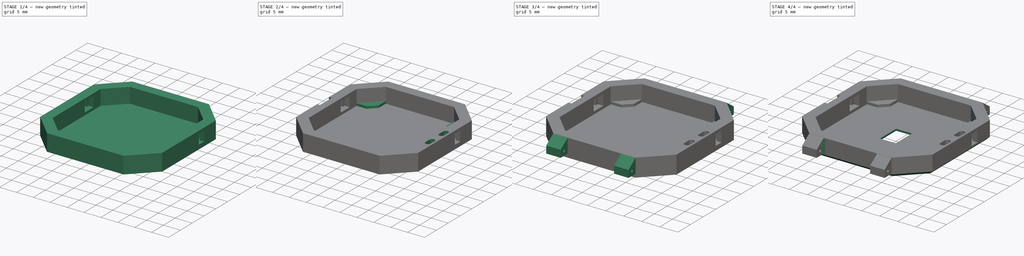
[diagram: build sequence overview — one tinted view per stage of 4, left to right]
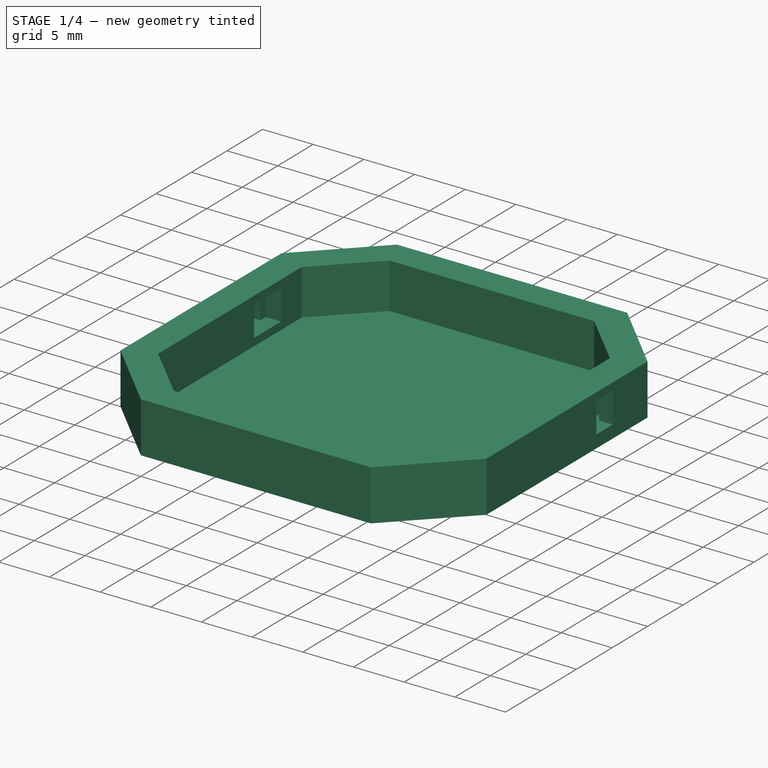
[diagram: stage 1 of 4 — iso view after this stage's code; geometry added in this stage tinted green]
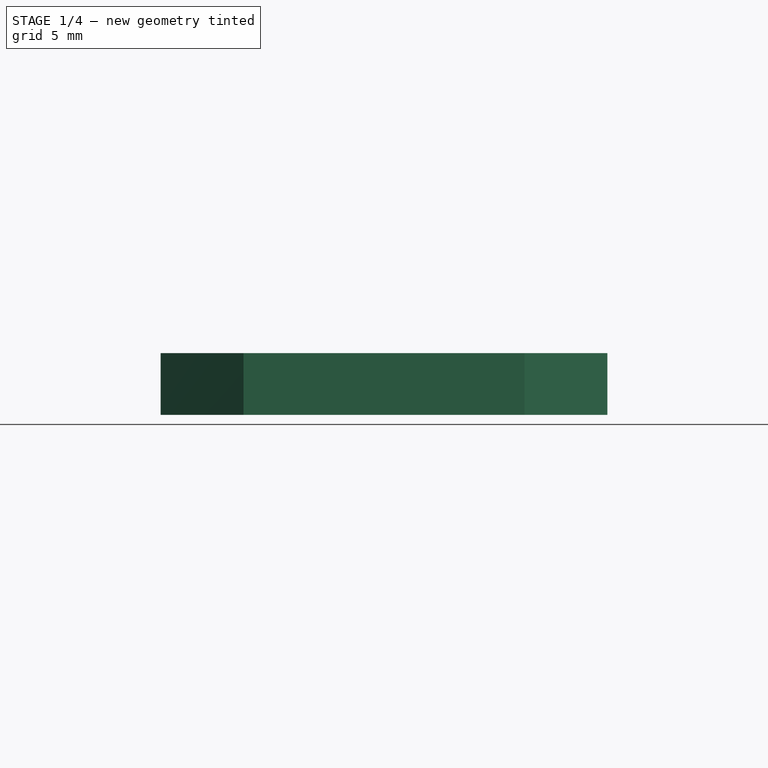
[diagram: stage 1 of 4 — front view after this stage's code; geometry added in this stage tinted green]
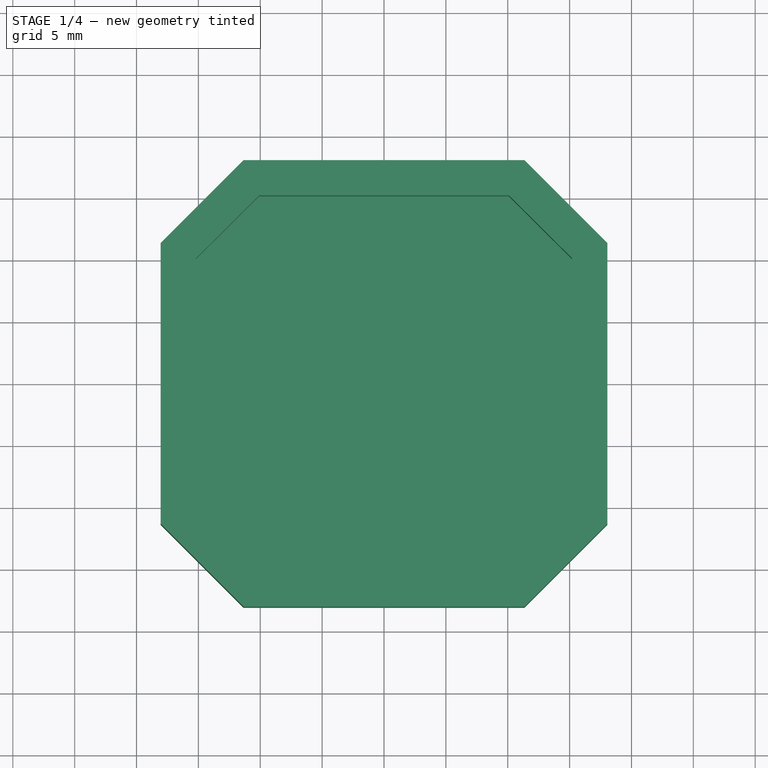
[diagram: stage 1 of 4 — top view after this stage's code; geometry added in this stage tinted green]
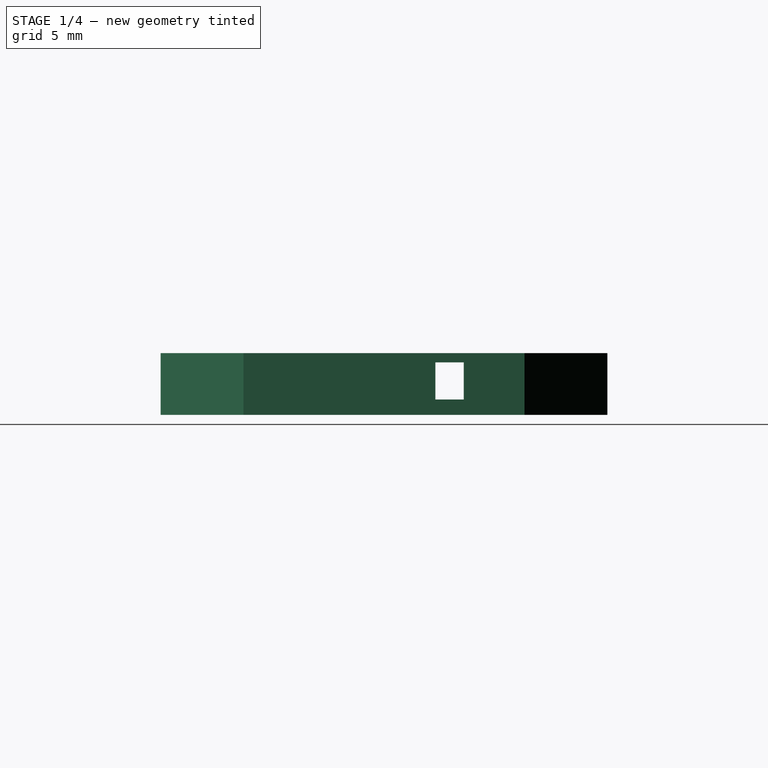
[diagram: stage 1 of 4 — right view after this stage's code; geometry added in this stage tinted green]
FCSTD DOCUMENT  (FreeCAD 0.19R)
Label: body-bottom_current
License: All rights reserved
LicenseURL: http://en.wikipedia.org/wiki/All_rights_reserved
objects: Sketcher::SketchObject×9, PartDesign::Pocket×6, PartDesign::Pad×3, PartDesign::Mirrored×3, PartDesign::Chamfer×2, PartDesign::MultiTransform×1, PartDesign::Body×1
note: 34 computed .brp shape members not serialized (recipe doc carries the construction recipe); baked Part::Feature solids carry a one-line shape summary decoded from their .brp

FEATURE [Sketcher::SketchObject] Sketch001  label="body-base"
  MapMode = 2
  sketch-geometry (16):
    g0: LineSegment StartX=18.05 StartY=11.35 StartZ=0 EndX=11.35 EndY=18.05 EndZ=0
    g1: LineSegment StartX=-11.35 StartY=18.05 StartZ=0 EndX=11.35 EndY=18.05 EndZ=0
    g2: LineSegment StartX=-18.05 StartY=11.35 StartZ=0 EndX=-11.35 EndY=18.05 EndZ=0
    g3: LineSegment StartX=-18.05 StartY=11.35 StartZ=0 EndX=-18.05 EndY=-11.35 EndZ=0
    g4: LineSegment StartX=-18.05 StartY=-11.35 StartZ=0 EndX=-11.35 EndY=-18.05 EndZ=0
    g5: LineSegment StartX=-11.35 StartY=-18.05 StartZ=0 EndX=11.35 EndY=-18.05 EndZ=0
    g6: LineSegment StartX=11.35 StartY=-18.05 StartZ=0 EndX=18.05 EndY=-11.35 EndZ=0
    g7: LineSegment StartX=18.05 StartY=-11.35 StartZ=0 EndX=18.05 EndY=11.35 EndZ=0
    g8: LineSegment [constr] StartX=-18.05 StartY=11.35 StartZ=0 EndX=-18.05 EndY=18.05 EndZ=0
    g9: LineSegment [constr] StartX=-18.05 StartY=18.05 StartZ=0 EndX=-11.35 EndY=18.05 EndZ=0
    g10: LineSegment [constr] StartX=11.35 StartY=18.05 StartZ=0 EndX=18.05 EndY=18.05 EndZ=0
    g11: LineSegment [constr] StartX=18.05 StartY=18.05 StartZ=0 EndX=18.05 EndY=11.35 EndZ=0
    g12: LineSegment [constr] StartX=-18.05 StartY=-11.35 StartZ=0 EndX=-18.05 EndY=-18.05 EndZ=0
    g13: LineSegment [constr] StartX=-18.05 StartY=-18.05 StartZ=0 EndX=-11.35 EndY=-18.05 EndZ=0
    g14: LineSegment [constr] StartX=11.35 StartY=-18.05 StartZ=0 EndX=18.05 EndY=-18.05 EndZ=0
    g15: LineSegment [constr] StartX=18.05 StartY=-18.05 StartZ=0 EndX=18.05 EndY=-11.35 EndZ=0
  constraints (43):
    c: Equal(g7,g5)
    c: Equal(g5,g3)
    c: Equal(g3,g1)
    c: Equal(g2,g0)
    c: Equal(g0,g6)
    c: Equal(g6,g4)
    c: DistanceY(g7,g7) = 22.7
    c: Symmetric(g0,g2,g-2)
    c: Symmetric(g4,g1,g-1)
    c: Coincident(g1,g2)
    c: Coincident(g2,g3)
    c: Coincident(g3,g4)
    c: Coincident(g4,g5)
    c: Coincident(g5,g6)
    c: Coincident(g6,g7)
    c: Coincident(g0,g7)
    c: Coincident(g0,g1)
    c: Equal(g7,g3)
    c: Coincident(g8,g2)
    c: Vertical(g8)
    c: Coincident(g9,g8)
    c: Coincident(g9,g1)
    c: Horizontal(g9)
    c: Equal(g9,g8)
    c: Coincident(g10,g0)
    c: Horizontal(g10)
    c: Coincident(g11,g0)
    c: Vertical(g11)
    c: Coincident(g10,g11)
    c: Equal(g11,g10)
    c: Coincident(g12,g3)
    c: Vertical(g12)
    c: Coincident(g13,g4)
    c: Horizontal(g13)
    c: Coincident(g12,g13)
    c: Equal(g13,g12)
    c: Coincident(g14,g5)
    c: Horizontal(g14)
    c: Coincident(g15,g14)
    c: Coincident(g15,g6)
    c: Vertical(g15)
    c: Equal(g14,g15)
    c: DistanceY(g15,g15) = 6.7
FEATURE [Sketcher::SketchObject] Sketch006  label="ganchinho-sketch"
  MapMode = 5
  Placement = pos=(0,0,0) rot=(1,0,0;1.5708rad)
  sketch-geometry (6):
    g0: LineSegment StartX=-18.2 StartY=5 StartZ=0 EndX=-18.2 EndY=2 EndZ=0
    g1: LineSegment StartX=-18.2 StartY=5 StartZ=0 EndX=-17.2 EndY=5 EndZ=0
    g2: LineSegment StartX=-17.2 StartY=5 StartZ=0 EndX=-17.2 EndY=3.5 EndZ=0
    g3: LineSegment StartX=-18.2 StartY=2 StartZ=0 EndX=-16.7 EndY=3 EndZ=0
    g4: LineSegment StartX=-16.7 StartY=3 StartZ=0 EndX=-17.2 EndY=3.5 EndZ=0
    g5: LineSegment [constr] StartX=-16.7 StartY=3 StartZ=0 EndX=-18.2 EndY=3 EndZ=0
  constraints (5):
    c: Coincident(g0,g3)
    c: Coincident(g0,g1)
    c: Coincident(g2,g4)
    c: Coincident(g1,g2)
    c: Coincident(g3,g4)
FEATURE [Sketcher::SketchObject] Sketch007  label="holes-holder-top"
  MapMode = 5
  Placement = pos=(0,0,5) rot=(0,0,1;0rad)
  sketch-geometry (8):
    g0: ArcOfCircle CenterX=16.7 CenterY=0.5 CenterZ=0 NormalX=0 NormalY=0 NormalZ=1 AngleXU=0 Radius=0.75 StartAngle=3.14159 EndAngle=6.28319
    g1: ArcOfCircle CenterX=16.7 CenterY=2.25001 CenterZ=0 NormalX=0 NormalY=0 NormalZ=1 AngleXU=0 Radius=0.75 StartAngle=6.28317 EndAngle=9.42478
    g2: LineSegment StartX=17.45 StartY=0.5 StartZ=0 EndX=17.45 EndY=2.25 EndZ=0
    g3: LineSegment StartX=15.95 StartY=0.5 StartZ=0 EndX=15.95 EndY=2.25001 EndZ=0
    g4: ArcOfCircle CenterX=16.7043 CenterY=-5.25 CenterZ=0 NormalX=0 NormalY=0 NormalZ=1 AngleXU=0 Radius=0.75 StartAngle=3.14159 EndAngle=6.28319
    g5: ArcOfCircle CenterX=16.7043 CenterY=-3.5 CenterZ=0 NormalX=0 NormalY=0 NormalZ=1 AngleXU=0 Radius=0.75 StartAngle=1.23631e-06 EndAngle=3.14159
    g6: LineSegment StartX=17.4543 StartY=-5.25 StartZ=0 EndX=17.4543 EndY=-3.5 EndZ=0
    g7: LineSegment StartX=15.9543 StartY=-5.25 StartZ=0 EndX=15.9543 EndY=-3.5 EndZ=0
  constraints (22):
    c: Coincident(g5,g6)
    c: Coincident(g1,g2)
    c: DistanceY(g5,g0) = 4
    c: Equal(g2,g6)
    c: Equal(g1,g5)
    c: Radius(g1) = 0.75
    c: DistanceY(g2,g2) = 1.75
    c: DistanceX(g-1,g0) = 16.7
    c: Vertical(g3)
    c: Vertical(g2)
    c: Vertical(g6)
    c: Vertical(g7)
    c: Equal(g4,g5)
    c: Equal(g0,g1)
    c: Equal(g6,g2)
    c: Tangent(g4,g6) = -1.5708
    c: Tangent(g4,g7) = 1.5708
    c: Tangent(g0,g3) = 1.5708
    c: Tangent(g0,g2) = -1.5708
    c: Tangent(g1,g3) = 1.5708
    c: Tangent(g5,g7) = 1.5708
    c: DistanceY(g5,g-1) = 3.5
FEATURE [Sketcher::SketchObject] Sketch008  label="support-band"
  AttachmentOffset = pos=(0,0,7.2) rot=(0,0,1;0rad)
  MapMode = 4
  Placement = pos=(7.4,0,2e-15) rot=(0.57735,0.57735,0.57735;2.0944rad)
  sketch-geometry (4):
    g0: LineSegment StartX=-18 StartY=1 StartZ=0 EndX=-18 EndY=5 EndZ=0
    g1: LineSegment StartX=-20.8 StartY=3 StartZ=0 EndX=-20.8 EndY=1 EndZ=0
    g2: LineSegment StartX=-20.8 StartY=1 StartZ=0 EndX=-18 EndY=1 EndZ=0
    g3: LineSegment StartX=-20.8 StartY=3 StartZ=0 EndX=-18 EndY=5 EndZ=0
  constraints (12):
    c: Coincident(g1,g2)
    c: Coincident(g0,g2)
    c: DistanceX(g0,g-1) = 18
    c: Vertical(g0)
    c: DistanceX(g2,g2) = 2.8
    c: DistanceY(g1,g1) = 2
    c: DistanceY(g0,g0) = 4
    c: Vertical(g1)
    c: Horizontal(g2)
    c: Coincident(g3,g1)
    c: Coincident(g3,g0)
    c: DistanceY(g-1,g0) = 1
FEATURE [PartDesign::Pad] Pad  label="base"
  Length = 5
  Length2 = 100
  Profile = -> Sketch001
  Type = 0
FEATURE [Sketcher::SketchObject] Sketch  label="board-pocket"
  MapMode = 5
  Placement = pos=(0,0,5) rot=(0,0,1;0rad)
  Support = -> [Pad]
  sketch-geometry (8):
    g0: LineSegment StartX=-15.2 StartY=10.1177 StartZ=0 EndX=-15.2 EndY=-10.1177 EndZ=0
    g1: LineSegment StartX=-10.1 StartY=-15.2 StartZ=0 EndX=-15.2 EndY=-10.1177 EndZ=0
    g2: LineSegment StartX=-10.1 StartY=-15.2 StartZ=0 EndX=10.1 EndY=-15.2 EndZ=0
    g3: LineSegment StartX=10.1 StartY=-15.2 StartZ=0 EndX=15.2 EndY=-10.1177 EndZ=0
    g4: LineSegment StartX=15.2 StartY=-10.1177 StartZ=0 EndX=15.2 EndY=10.1177 EndZ=0
    g5: LineSegment StartX=15.2 StartY=10.1177 StartZ=0 EndX=10.1 EndY=15.2 EndZ=0
    g6: LineSegment StartX=-10.1 StartY=15.2 StartZ=0 EndX=-15.2 EndY=10.1177 EndZ=0
    g7: LineSegment StartX=-10.1 StartY=15.2 StartZ=0 EndX=10.1 EndY=15.2 EndZ=0
  constraints (21):
    c: Coincident(g6,g7)
    c: Coincident(g7,g5)
    c: Coincident(g5,g4)
    c: Coincident(g4,g3)
    c: Coincident(g3,g2)
    c: Coincident(g2,g1)
    c: Coincident(g1,g0)
    c: Coincident(g0,g6)
    c: Symmetric(g0,g0,g-1)
    c: Symmetric(g0,g3,g-2)
    c: Symmetric(g0,g4,g-2)
    c: Symmetric(g6,g1,g-1)
    c: Symmetric(g2,g5,g-1)
    c: Symmetric(g5,g6,g-2)
    c: DistanceX(g7,g7) = 20.2
    c: DistanceX(g0,g4) = 30.4
    c: Distance(g2,g5) = 30.4
    c: Equal(g6,g1)
    c: Equal(g1,g3)
    c: Equal(g3,g5)
    c: Distance(g3) = 7.2
FEATURE [PartDesign::Pocket] Pocket  label="pcb"
  BaseFeature = -> Pad
  Length = 4.5
  Length2 = 100
  Profile = -> Sketch
  Type = 0
FEATURE [Sketcher::SketchObject] Sketch004  label="buttom-space"
  AttachmentOffset = pos=(0,0,0.75) rot=(0,0,1;0rad)
  MapMode = 5
  Placement = pos=(0,0,1.25) rot=(0,0,1;0rad)
  Support = -> [Pocket]
  sketch-geometry (18):
    g0: LineSegment [constr] StartX=15.2 StartY=-10.1 StartZ=0 EndX=15.2 EndY=3.4 EndZ=0
    g1: LineSegment [constr] StartX=-15.2 StartY=-10.1 StartZ=0 EndX=-15.2 EndY=3.4 EndZ=0
    g2: LineSegment StartX=15.2 StartY=3.4 StartZ=0 EndX=15.2 EndY=7.2 EndZ=0
    g3: LineSegment StartX=-15.2 StartY=3.4 StartZ=0 EndX=-15.2 EndY=7.2 EndZ=0
    g4: LineSegment StartX=15.2 StartY=7.2 StartZ=0 EndX=16.7 EndY=7.2 EndZ=0
    g5: LineSegment StartX=15.2 StartY=3.4 StartZ=0 EndX=16.7 EndY=3.4 EndZ=0
    g6: LineSegment StartX=16.7 StartY=4.15 StartZ=0 EndX=16.7 EndY=3.4 EndZ=0
    g7: LineSegment StartX=16.7 StartY=6.45 StartZ=0 EndX=16.7 EndY=7.2 EndZ=0
    g8: LineSegment StartX=16.7 StartY=6.45 StartZ=0 EndX=18.2 EndY=6.45 EndZ=0
    g9: LineSegment StartX=18.2 StartY=6.45 StartZ=0 EndX=18.2 EndY=4.15 EndZ=0
    g10: LineSegment StartX=16.7 StartY=4.15 StartZ=0 EndX=18.2 EndY=4.15 EndZ=0
    g11: LineSegment StartX=-18.2 StartY=6.45 StartZ=0 EndX=-16.7 EndY=6.45 EndZ=0
    g12: LineSegment StartX=-16.7 StartY=3.4 StartZ=0 EndX=-15.2 EndY=3.4 EndZ=0
    g13: LineSegment StartX=-18.2 StartY=4.15 StartZ=0 EndX=-16.7 EndY=4.15 EndZ=0
    g14: LineSegment StartX=-16.7 StartY=4.15 StartZ=0 EndX=-16.7 EndY=3.4 EndZ=0
    g15: LineSegment StartX=-16.7 StartY=7.2 StartZ=0 EndX=-16.7 EndY=6.45 EndZ=0
    g16: LineSegment StartX=-18.2 StartY=6.45 StartZ=0 EndX=-18.2 EndY=4.15 EndZ=0
    g17: LineSegment StartX=-16.7 StartY=7.2 StartZ=0 EndX=-15.2 EndY=7.2 EndZ=0
  constraints (16):
    c: Coincident(g13,g16)
    c: Coincident(g11,g16)
    c: Coincident(g12,g14)
    c: Coincident(g13,g14)
    c: Coincident(g15,g11)
    c: Coincident(g15,g17)
    c: Coincident(g12,g3)
    c: Coincident(g17,g3)
    c: Coincident(g5,g2)
    c: Coincident(g2,g4)
    c: Coincident(g6,g5)
    c: Coincident(g10,g6)
    c: Coincident(g8,g7)
    c: Coincident(g7,g4)
    c: Coincident(g10,g9)
    c: Coincident(g9,g8)
FEATURE [PartDesign::Pocket] Pocket001  label="buttons"
  BaseFeature = -> Pocket
  Length = 3
  Length2 = 100
  Profile = -> Sketch004
  Reversed = true
  Type = 0
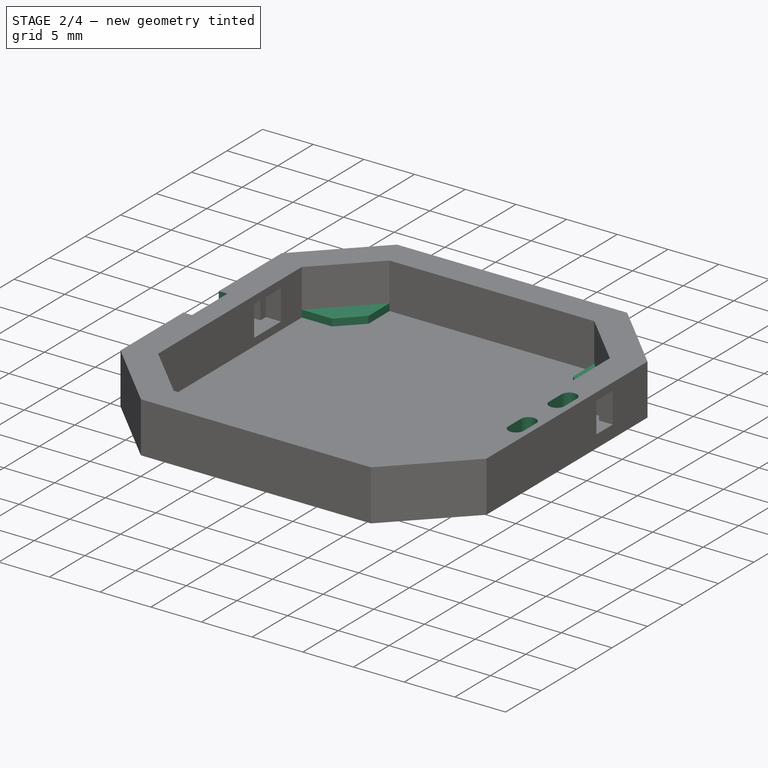
[diagram: stage 2 of 4 — iso view after this stage's code; geometry added in this stage tinted green]
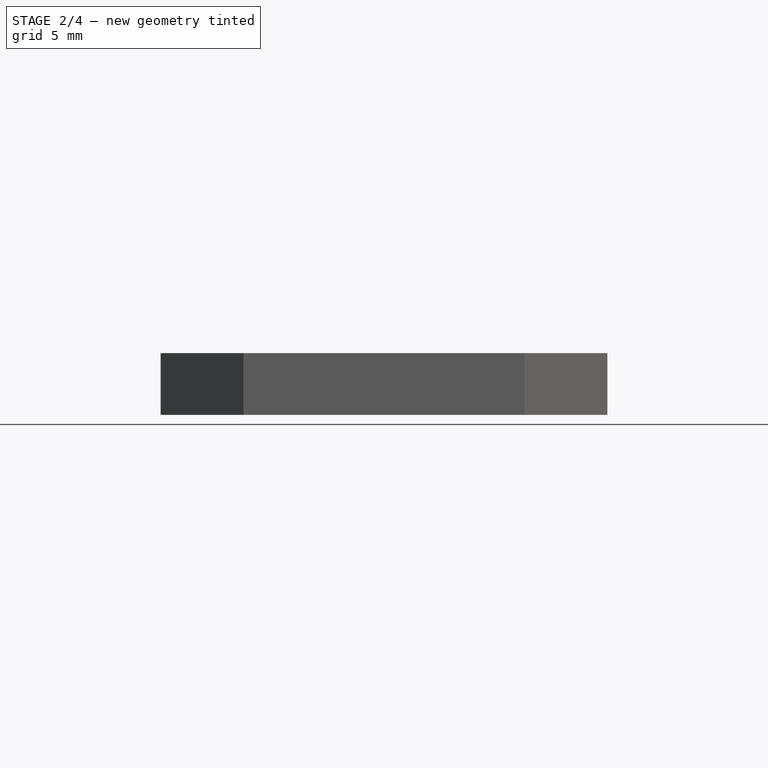
[diagram: stage 2 of 4 — front view after this stage's code; geometry added in this stage tinted green]
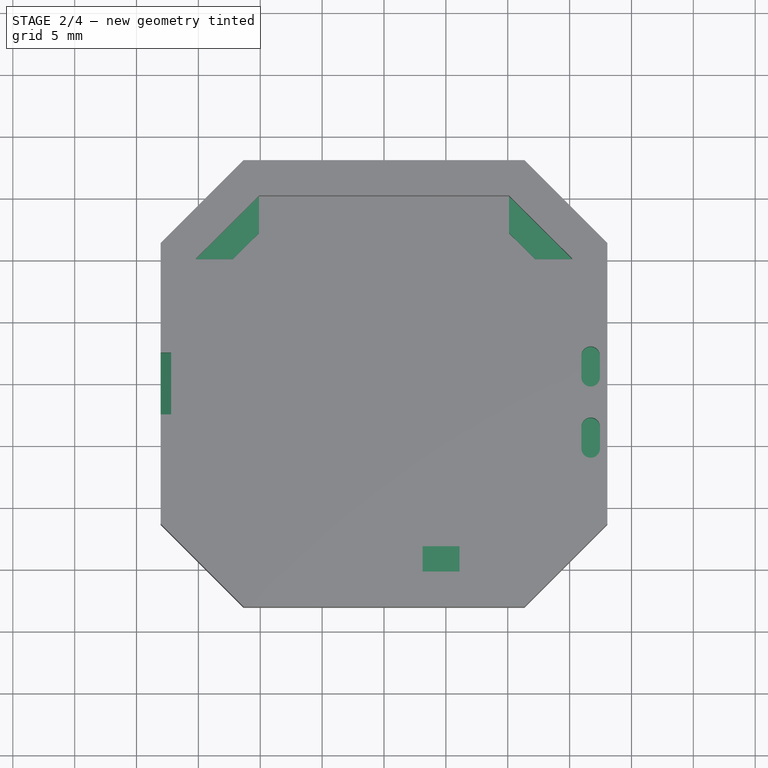
[diagram: stage 2 of 4 — top view after this stage's code; geometry added in this stage tinted green]
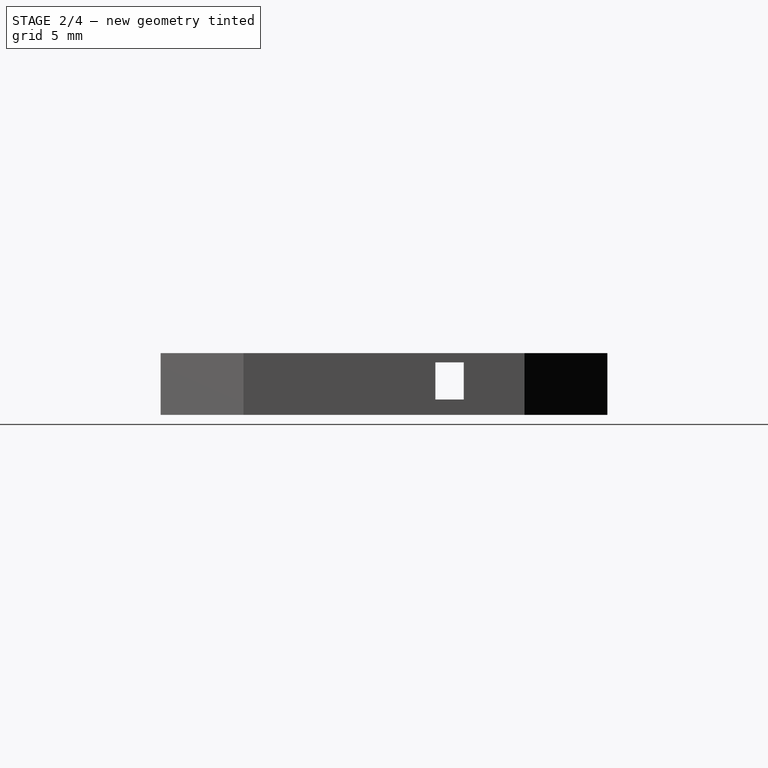
[diagram: stage 2 of 4 — right view after this stage's code; geometry added in this stage tinted green]
FEATURE [Sketcher::SketchObject] Sketch005  label="board-foot"
  ExternalGeometry = -> [Sketch]
  MapMode = 5
  Placement = pos=(0,0,0.5) rot=(0,0,1;0rad)
  Support = -> [Pocket001]
  sketch-geometry (13):
    g0: LineSegment StartX=-10.1 StartY=15.2 StartZ=0 EndX=-10.1 EndY=12.2207 EndZ=0
    g1: LineSegment StartX=-15.2 StartY=10.1177 StartZ=0 EndX=-12.2103 EndY=10.1177 EndZ=0
    g2: LineSegment StartX=12.2103 StartY=10.1177 StartZ=0 EndX=15.2 EndY=10.1177 EndZ=0
    g3: LineSegment StartX=10.1 StartY=12.2207 StartZ=0 EndX=10.1 EndY=15.2 EndZ=0
    g4: LineSegment StartX=-12.2103 StartY=10.1177 StartZ=0 EndX=-10.1 EndY=12.2207 EndZ=0
    g5: LineSegment StartX=10.1 StartY=12.2207 StartZ=0 EndX=12.2103 EndY=10.1177 EndZ=0
    g6: LineSegment StartX=3.1207 StartY=-15.2 StartZ=0 EndX=6.1 EndY=-15.2 EndZ=0
    g7: LineSegment StartX=3.1207 StartY=-13.0897 StartZ=0 EndX=3.1207 EndY=-15.2 EndZ=0
    g8: LineSegment StartX=6.1 StartY=-13.0897 StartZ=0 EndX=6.1 EndY=-15.2 EndZ=0
    g9: LineSegment [constr] StartX=10.1 StartY=12.2207 StartZ=0 EndX=11.5896 EndY=13.7155 EndZ=0
    g10: LineSegment StartX=-15.2 StartY=10.1177 StartZ=0 EndX=-10.1 EndY=15.2 EndZ=0
    g11: LineSegment StartX=10.1 StartY=15.2 StartZ=0 EndX=15.2 EndY=10.1177 EndZ=0
    g12: LineSegment StartX=3.1207 StartY=-13.0897 StartZ=0 EndX=6.1 EndY=-13.0897 EndZ=0
  constraints (35):
    c: Vertical(g0)
    c: Horizontal(g1)
    c: Vertical(g3)
    c: Horizontal(g2)
    c: Coincident(g2,g5)
    c: Coincident(g3,g5)
    c: Coincident(g1,g4)
    c: Equal(g4,g5)
    c: Equal(g5,g0)
    c: Equal(g0,g3)
    c: Vertical(g7)
    c: Vertical(g8)
    c: Coincident(g9,g3)
    c: Equal(g9,g8)
    c: PointOnObject(g6,g-3)
    c: PointOnObject(g6,g-3)
    c: Coincident(g6,g8)
    c: Coincident(g7,g6)
    c: Coincident(g0,g4)
    c: Coincident(g0,g-4)
    c: Coincident(g1,g-4)
    c: Coincident(g10,g1)
    c: Coincident(g10,g0)
    c: Coincident(g11,g3)
    c: PointOnObject(g9,g11)
    c: Coincident(g3,g-5)
    c: Coincident(g11,g2)
    c: Coincident(g11,g-5)
    c: Perpendicular(g11,g9)
    c: Parallel(g5,g11)
    c: Coincident(g12,g7)
    c: Coincident(g12,g8)
    c: Horizontal(g12)
    c: Distance(g6,g-3) = 4
    c: Equal(g12,g5)
FEATURE [PartDesign::Pad] Pad001  label="pcb_support"
  BaseFeature = -> Pocket001
  Length = 0.7
  Length2 = 100
  Profile = -> Sketch005
  Type = 0
FEATURE [PartDesign::Pocket] Pocket002  label="lid_holder"
  BaseFeature = -> Pad001
  Length = 5
  Length2 = 100
  Midplane = true
  Profile = -> Sketch006
  Type = 0
FEATURE [PartDesign::Pocket] Pocket003  label="lid_connector"
  BaseFeature = -> Pocket002
  Length = 3
  Length2 = 100
  Profile = -> Sketch007
  Type = 0
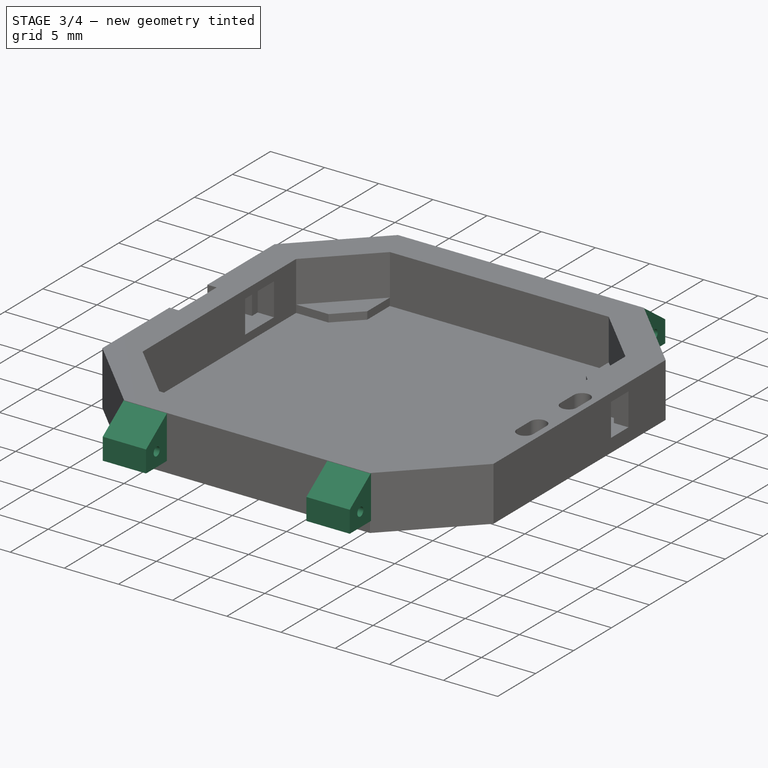
[diagram: stage 3 of 4 — iso view after this stage's code; geometry added in this stage tinted green]
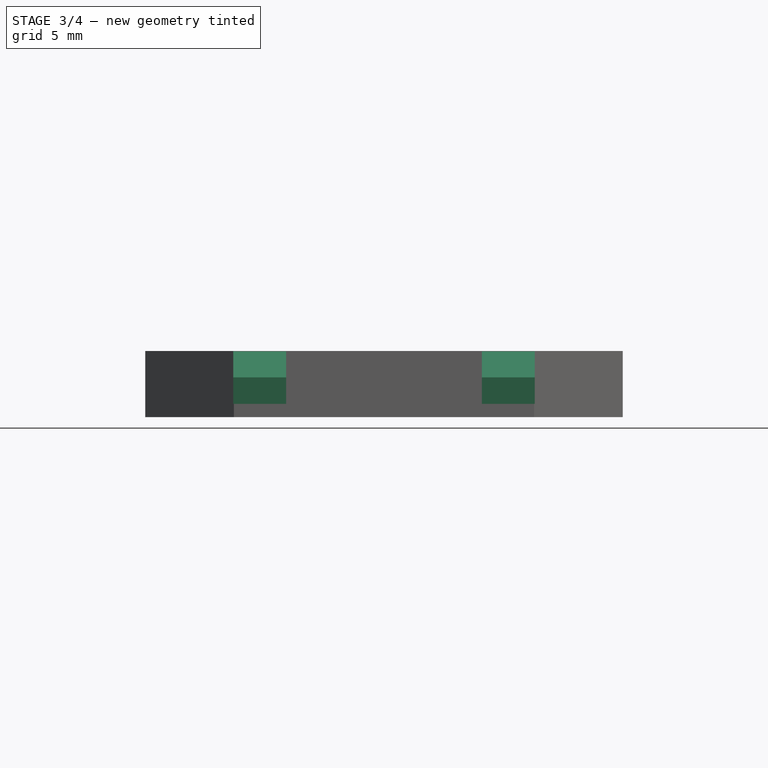
[diagram: stage 3 of 4 — front view after this stage's code; geometry added in this stage tinted green]
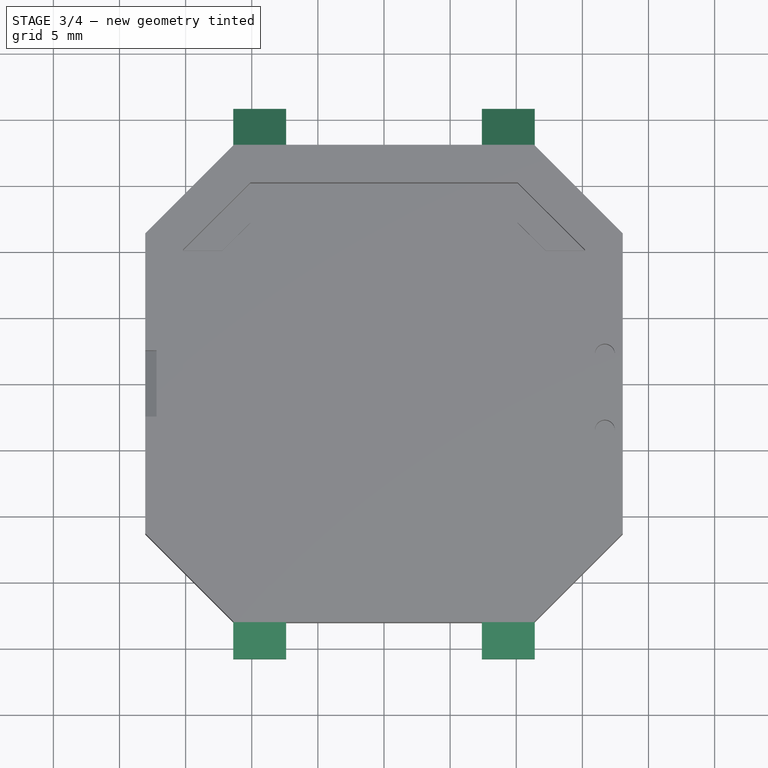
[diagram: stage 3 of 4 — top view after this stage's code; geometry added in this stage tinted green]
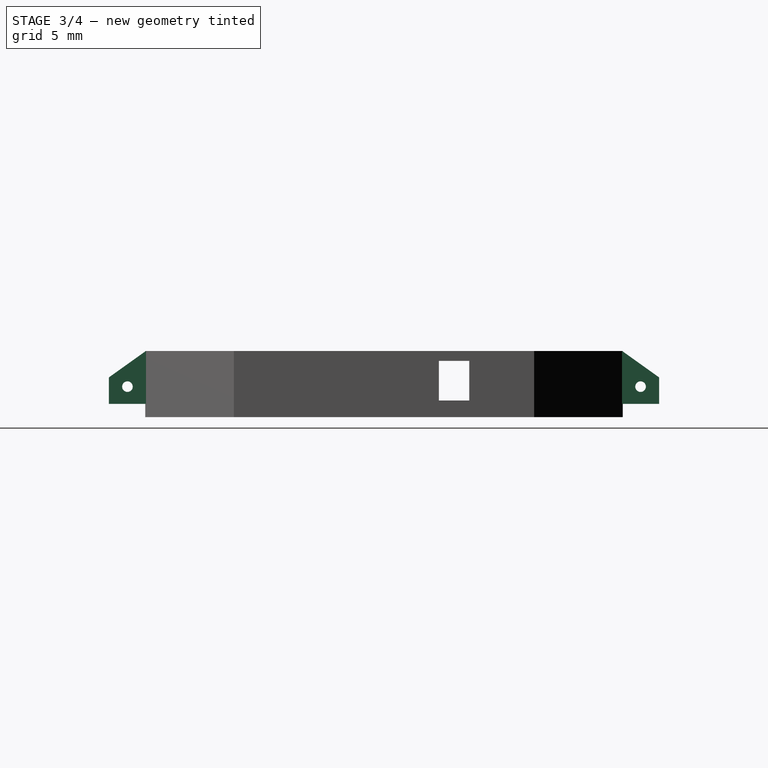
[diagram: stage 3 of 4 — right view after this stage's code; geometry added in this stage tinted green]
FEATURE [PartDesign::Pad] Pad002  label="band_holder"
  BaseFeature = -> Pocket003
  Length = 4
  Length2 = 100
  Profile = -> Sketch008
  Type = 0
FEATURE [PartDesign::Mirrored] Mirrored
  MirrorPlane = -> Sketch008 [V_Axis]
FEATURE [PartDesign::Mirrored] Mirrored001
  MirrorPlane = -> YZ_Plane001
FEATURE [PartDesign::MultiTransform] MultiTransform  label="band_holder_pattern"
  BaseFeature = -> Pad002
  Originals = -> [Pad002]
  Transformations = -> [Mirrored,Mirrored001]
FEATURE [Sketcher::SketchObject] Sketch014  label="pin-hole-sketch"
  MapMode = 5
  Placement = pos=(11.4,0,0) rot=(0.57735,0.57735,0.57735;2.0944rad)
  Support = -> [MultiTransform]
  sketch-geometry (1):
    g0: Circle CenterX=-19.4 CenterY=2.3 CenterZ=0 NormalX=0 NormalY=0 NormalZ=1 AngleXU=0 Radius=0.4
  constraints (3):
    c: DistanceX(g0,g-1) = 19.4
    c: DistanceY(g-1,g0) = 2.3
    c: Radius(g0) = 0.4
FEATURE [PartDesign::Pocket] Pocket004  label="band_holder_hole"
  BaseFeature = -> MultiTransform
  Length = 5
  Length2 = 100
  Profile = -> Sketch014
  Type = 1
FEATURE [PartDesign::Mirrored] Mirrored002  label="band_holder_hole_pattern"
  BaseFeature = -> Pocket004
  MirrorPlane = -> Sketch014 [V_Axis]
  Originals = -> [Pocket004]
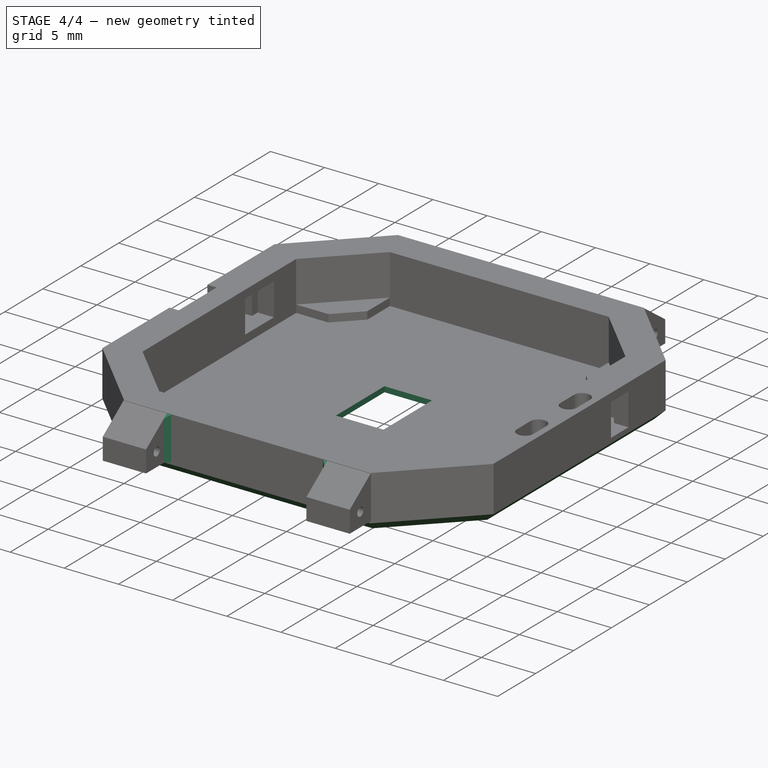
[diagram: stage 4 of 4 — iso view after this stage's code; geometry added in this stage tinted green]
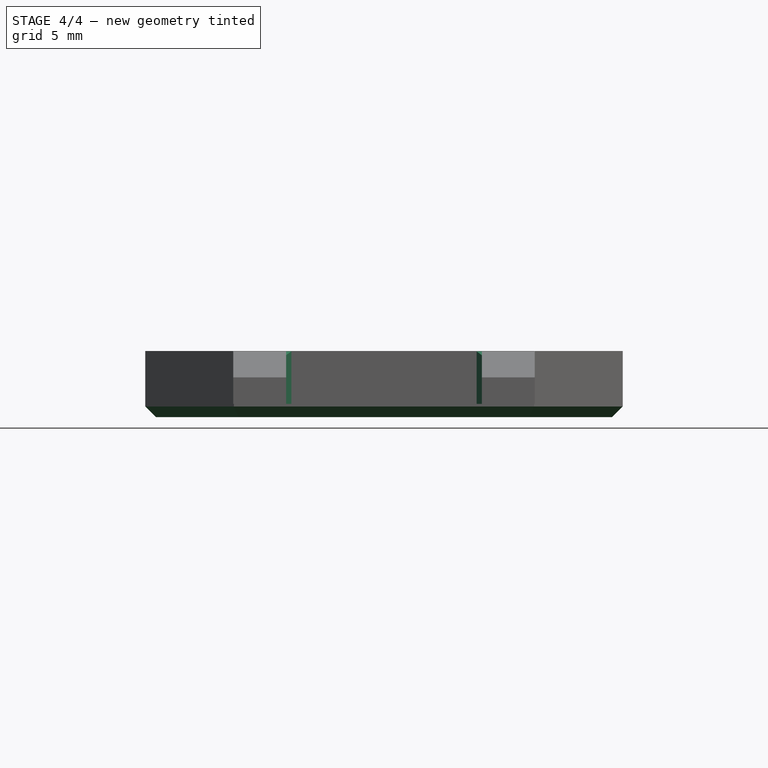
[diagram: stage 4 of 4 — front view after this stage's code; geometry added in this stage tinted green]
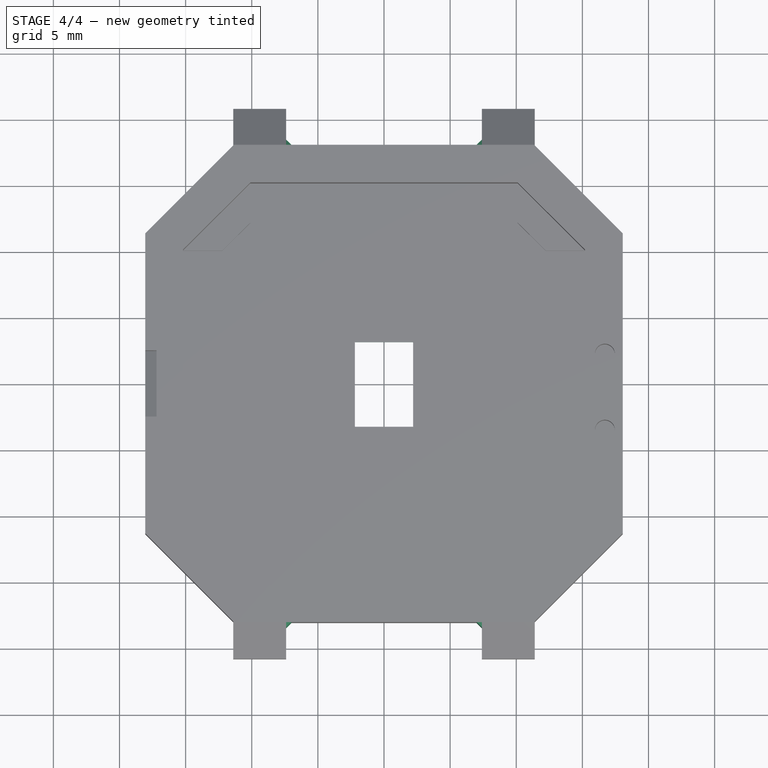
[diagram: stage 4 of 4 — top view after this stage's code; geometry added in this stage tinted green]
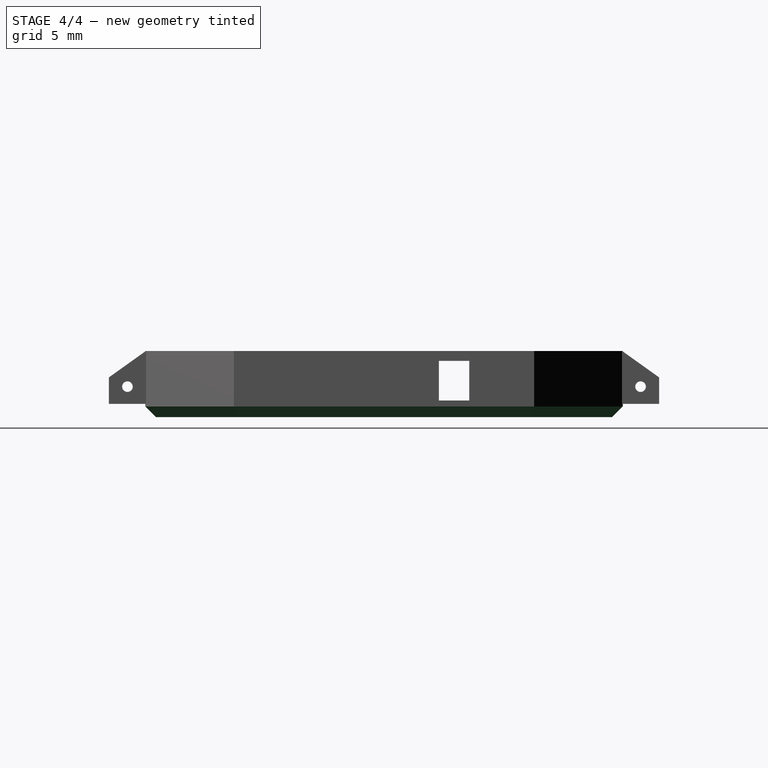
[diagram: stage 4 of 4 — right view after this stage's code; geometry added in this stage tinted green]
FEATURE [Sketcher::SketchObject] Sketch003  label="sensor"
  MapMode = 5
  Placement = pos=(0,0,0.5) rot=(0,0,1;0rad)
  Support = -> [Mirrored002]
  sketch-geometry (12):
    g0: LineSegment [constr] StartX=-15.2 StartY=-10.1 StartZ=0 EndX=-2.2 EndY=-10.1 EndZ=0
    g1: LineSegment [constr] StartX=-10.1 StartY=-15.2 StartZ=0 EndX=-10.1 EndY=-3.2 EndZ=0
    g2: LineSegment [constr] StartX=15.2 StartY=10.1 StartZ=0 EndX=2.2 EndY=10.1 EndZ=0
    g3: LineSegment [constr] StartX=10.1 StartY=15.2 StartZ=0 EndX=10.1 EndY=3.2 EndZ=0
    g4: LineSegment [constr] StartX=-2.2 StartY=-10.1 StartZ=0 EndX=-2.2 EndY=3.2 EndZ=0
    g5: LineSegment [constr] StartX=2.2 StartY=10.1 StartZ=0 EndX=2.2 EndY=-3.2 EndZ=0
    g6: LineSegment [constr] StartX=10.1 StartY=3.2 StartZ=0 EndX=-2.2 EndY=3.2 EndZ=0
    g7: LineSegment [constr] StartX=-10.1 StartY=-3.2 StartZ=0 EndX=2.2 EndY=-3.2 EndZ=0
    g8: LineSegment StartX=-2.2 StartY=3.2 StartZ=0 EndX=2.2 EndY=3.2 EndZ=0
    g9: LineSegment StartX=2.2 StartY=3.2 StartZ=0 EndX=2.2 EndY=-3.2 EndZ=0
    g10: LineSegment StartX=2.2 StartY=-3.2 StartZ=0 EndX=-2.2 EndY=-3.2 EndZ=0
    g11: LineSegment StartX=-2.2 StartY=-3.2 StartZ=0 EndX=-2.2 EndY=3.2 EndZ=0
  constraints (4):
    c: Coincident(g10,g11)
    c: Coincident(g8,g11)
    c: Coincident(g9,g10)
    c: Coincident(g8,g9)
FEATURE [PartDesign::Pocket] Pocket005  label="skin_sensor"
  BaseFeature = -> Mirrored002
  Length = 5
  Length2 = 100
  Profile = -> Sketch003
  Type = 1
FEATURE [PartDesign::Chamfer] Chamfer  label="bottom_chamfer"
  Base = -> Pocket005 [Edge13,Edge12,Edge8,Edge10,Edge1,Edge7,Edge9,Edge11]
  BaseFeature = -> Pocket005
  Size = 0.8
FEATURE [PartDesign::Chamfer] Chamfer001  label="band_holder_reinforcement"
  Base = -> Chamfer [Edge10,Edge13,Edge127,Edge124]
  BaseFeature = -> Chamfer
  Size = 0.4
FEATURE [PartDesign::Body] Body001  label="Body"
  Group = -> [Sketch001,Pad,Sketch,Pocket,Sketch004,Pocket001,Sketch005,Pad001,Sketch006,Pocket002,Sketch007,Pocket003,Sketch008,Pad002,MultiTransform,Mirrored,Mirrored001,Sketch014,Pocket004,Mirrored002,Sketch003,Pocket005,Chamfer,Chamfer001]
  Origin = -> Origin001
  Tip = -> Chamfer001
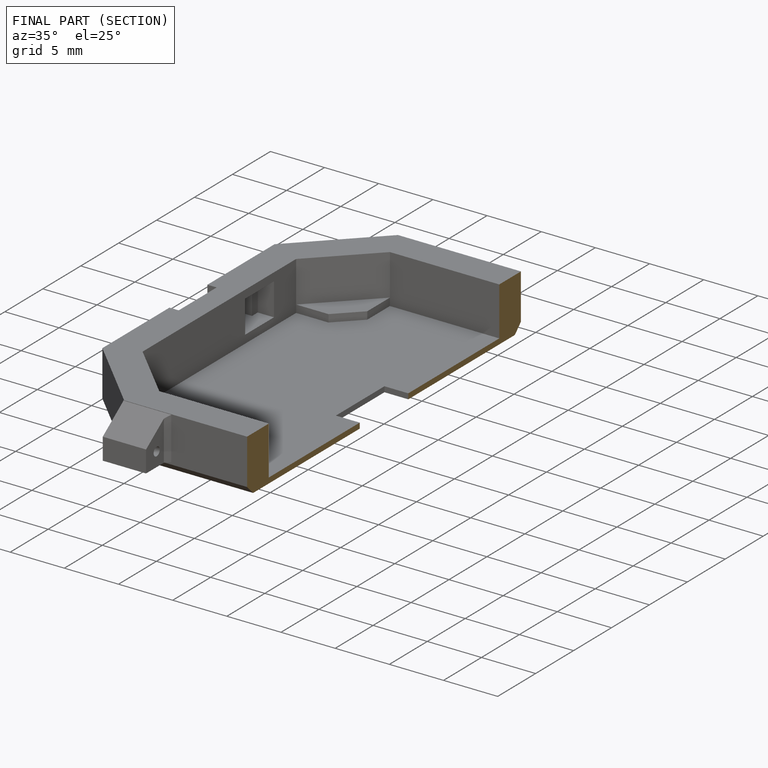
[diagram: finished part — half-section view (interior)]
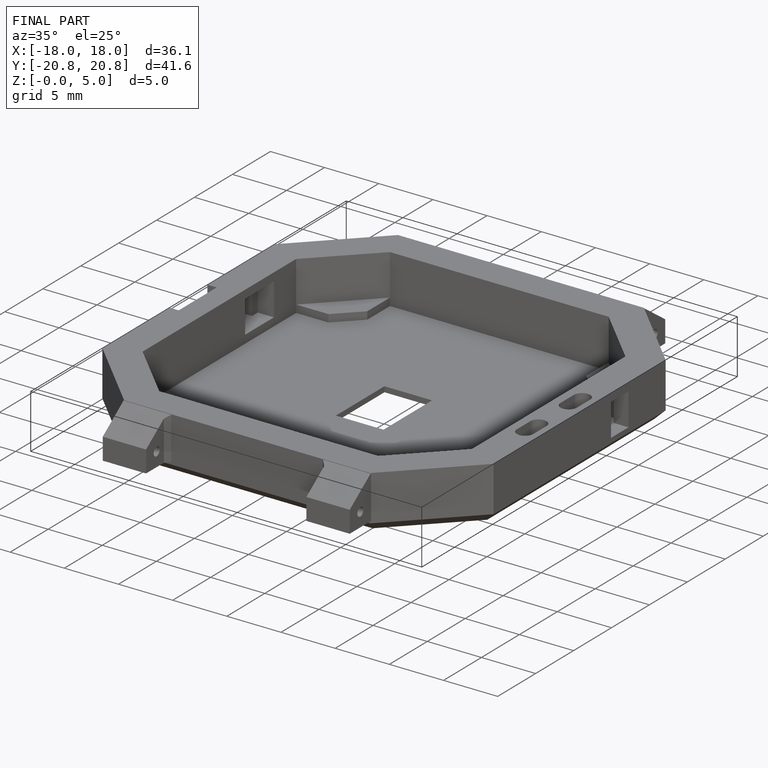
[diagram: finished part — iso view with bounding-box wireframe]
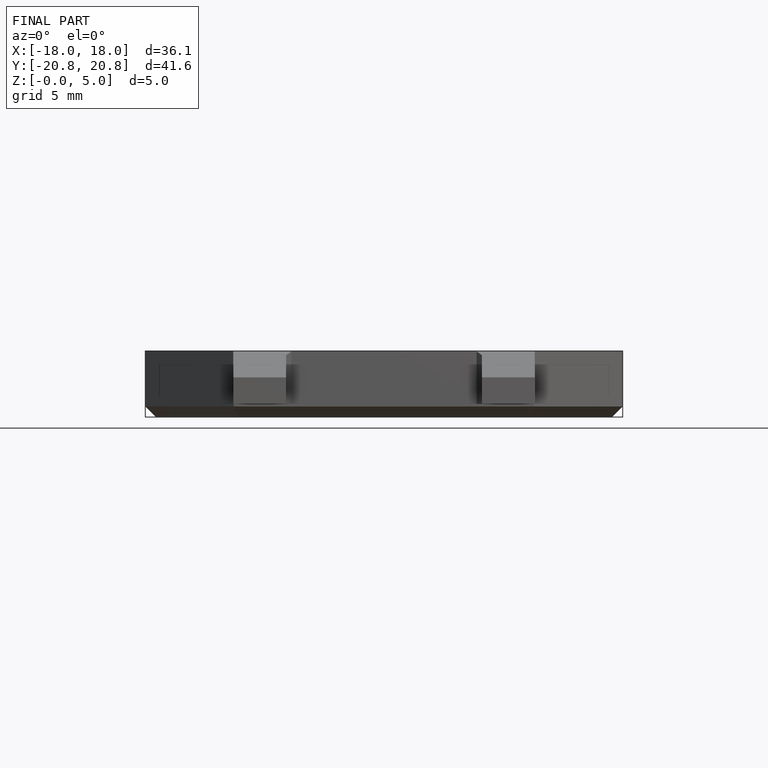
[diagram: finished part — front view with bounding-box wireframe]
